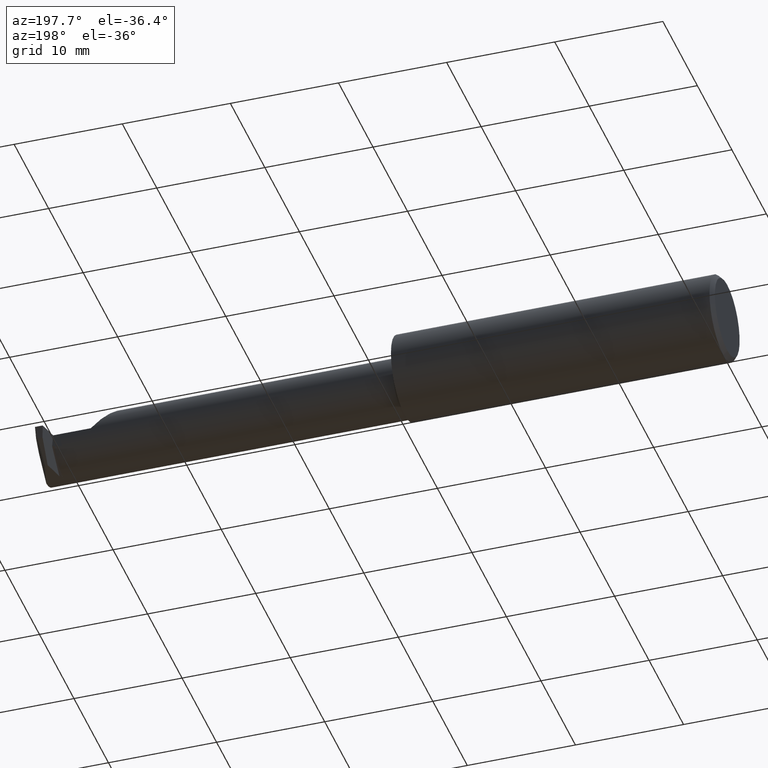
[diagram: clean part render]
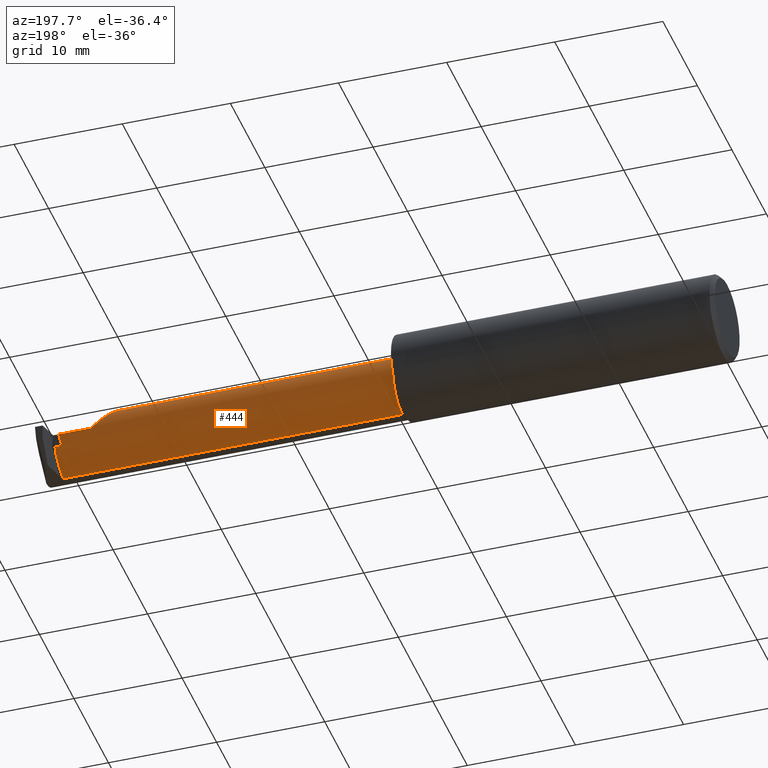
[diagram: same view with one face highlighted and labeled with its STEP entity id]
A machine part, auxiliary view. The second image highlights one B-rep face of the part: STEP entity #444.
In plain terms, the highlighted cylindrical surface (edge-blend (fillet) strip) has radius 2.794 mm, axis along (-1, -0, -0).
Its self-contained STEP definition (entity closure, byte-faithful):
#2 = EDGE_CURVE ( 'NONE', #621, #810, #738, .T. ) ;
#4 = LINE ( 'NONE', #78, #486 ) ;
#10 = AXIS2_PLACEMENT_3D ( 'NONE', #38, #619, #751 ) ;
#38 = CARTESIAN_POINT ( 'NONE',  ( 2.435000000000000053, -0.05409999999999999531, 0.000000000000000000 ) ) ;
#45 = CARTESIAN_POINT ( 'NONE',  ( 2.433435339008330534, -0.05409999999999999531, 0.000000000000000000 ) ) ;
#70 = AXIS2_PLACEMENT_3D ( 'NONE', #904, #279, #408 ) ;
#72 = DIRECTION ( 'NONE',  ( 1.000000000000000000, 0.000000000000000000, 0.000000000000000000 ) ) ;
#78 = CARTESIAN_POINT ( 'NONE',  ( 1.175000000000000266, 0.05590000000000001218, -3.918740332231607202E-17 ) ) ;
#93 = ORIENTED_EDGE ( 'NONE', *, *, #2, .T. ) ;
#99 = EDGE_CURVE ( 'NONE', #621, #911, #298, .T. ) ;
#100 = VERTEX_POINT ( 'NONE', #638 ) ;
#108 = ORIENTED_EDGE ( 'NONE', *, *, #672, .T. ) ;
#114 = DIRECTION ( 'NONE',  ( 0.000000000000000000, -1.785014314041990160E-15, -1.000000000000000000 ) ) ;
#122 = ORIENTED_EDGE ( 'NONE', *, *, #343, .T. ) ;
#130 = ORIENTED_EDGE ( 'NONE', *, *, #190, .F. ) ;
#171 = EDGE_CURVE ( 'NONE', #307, #100, #4, .T. ) ;
#177 = ORIENTED_EDGE ( 'NONE', *, *, #512, .F. ) ;
#190 = EDGE_CURVE ( 'NONE', #763, #616, #840, .T. ) ;
#195 = DIRECTION ( 'NONE',  ( -1.000000000000000000, -0.000000000000000000, -0.000000000000000000 ) ) ;
#209 = VECTOR ( 'NONE', #700, 39.37007874015748143 ) ;
#229 = CARTESIAN_POINT ( 'NONE',  ( 1.175000000000000266, -0.05409999999999999531, 0.1100000000000000006 ) ) ;
#231 = VERTEX_POINT ( 'NONE', #327 ) ;
#244 = CARTESIAN_POINT ( 'NONE',  ( 2.433435339008330534, 0.04660744544460401068, -0.04424941165735549187 ) ) ;
#248 = CARTESIAN_POINT ( 'NONE',  ( 1.175000000000000266, -0.03363394074619011076, -0.1080793246584172002 ) ) ;
#251 = VERTEX_POINT ( 'NONE', #604 ) ;
#279 = DIRECTION ( 'NONE',  ( -1.000000000000000000, -0.000000000000000000, -0.000000000000000000 ) ) ;
#287 = AXIS2_PLACEMENT_3D ( 'NONE', #45, #685, #114 ) ;
#298 = LINE ( 'NONE', #434, #209 ) ;
#307 = VERTEX_POINT ( 'NONE', #739 ) ;
#309 = LINE ( 'NONE', #248, #438 ) ;
#326 = CARTESIAN_POINT ( 'NONE',  ( 1.200000000000000178, -0.05409999999999999531, 0.1100000000000000006 ) ) ;
#327 = CARTESIAN_POINT ( 'NONE',  ( 2.435000000000000053, -0.03363394074619008300, -0.1080793246584171863 ) ) ;
#336 = LINE ( 'NONE', #614, #548 ) ;
#339 = CARTESIAN_POINT ( 'NONE',  ( 2.300000000000000266, 0.05590000000000006075, -3.918740332231607202E-17 ) ) ;
#343 = EDGE_CURVE ( 'NONE', #231, #251, #428, .T. ) ;
#352 = FACE_OUTER_BOUND ( 'NONE', #754, .T. ) ;
#371 = ORIENTED_EDGE ( 'NONE', *, *, #484, .T. ) ;
#407 = CARTESIAN_POINT ( 'NONE',  ( 2.235563491861040308, 0.05590000000000019259, 0.06443650813895937524 ) ) ;
#408 = DIRECTION ( 'NONE',  ( 0.000000000000000000, 0.000000000000000000, 1.000000000000000000 ) ) ;
#419 = CARTESIAN_POINT ( 'NONE',  ( 2.189999999999999947, 0.01033650813895969217, 0.1100000000000000283 ) ) ;
#428 = CIRCLE ( 'NONE', #10, 0.1100000000000000006 ) ;
#430 = VERTEX_POINT ( 'NONE', #813 ) ;
#434 = CARTESIAN_POINT ( 'NONE',  ( 1.175000000000000266, 0.04660744544460301148, -0.04424941165735776089 ) ) ;
#436 =( BOUNDED_CURVE ( )  B_SPLINE_CURVE ( 3, ( #339, #407, #419, #477 ),
 .UNSPECIFIED., .F., .F. ) 
 B_SPLINE_CURVE_WITH_KNOTS ( ( 4, 4 ),
 ( 4.712388980384687009, 6.283185307179586232 ),
 .UNSPECIFIED. ) 
 CURVE ( )  GEOMETRIC_REPRESENTATION_ITEM ( )  RATIONAL_B_SPLINE_CURVE ( ( 1.000000000000000000, 0.8047378541243643824, 0.8047378541243643824, 1.000000000000000000 ) ) 
 REPRESENTATION_ITEM ( '' )  );
#438 = VECTOR ( 'NONE', #531, 39.37007874015748143 ) ;
#444 = ADVANCED_FACE ( 'NONE', ( #352 ), #629, .T. ) ;
#466 = ORIENTED_EDGE ( 'NONE', *, *, #793, .T. ) ;
#477 = CARTESIAN_POINT ( 'NONE',  ( 2.189999999999999947, -0.05409999999999999531, 0.1100000000000000006 ) ) ;
#484 = EDGE_CURVE ( 'NONE', #430, #616, #554, .T. ) ;
#486 = VECTOR ( 'NONE', #504, 39.37007874015748143 ) ;
#490 = CARTESIAN_POINT ( 'NONE',  ( 2.433435339008330534, -0.03363394074619008300, -0.1080793246584171724 ) ) ;
#504 = DIRECTION ( 'NONE',  ( 1.000000000000000000, 0.000000000000000000, 0.000000000000000000 ) ) ;
#512 = EDGE_CURVE ( 'NONE', #911, #100, #762, .T. ) ;
#517 = CARTESIAN_POINT ( 'NONE',  ( 2.189999999999999947, -0.05409999999999999531, 0.1100000000000000006 ) ) ;
#531 = DIRECTION ( 'NONE',  ( 1.000000000000000000, 0.000000000000000000, 0.000000000000000000 ) ) ;
#548 = VECTOR ( 'NONE', #195, 39.37007874015748143 ) ;
#554 = CIRCLE ( 'NONE', #864, 0.1100000000000000006 ) ;
#578 = ORIENTED_EDGE ( 'NONE', *, *, #171, .T. ) ;
#580 = CARTESIAN_POINT ( 'NONE',  ( 2.407638684877114965, 0.04660744544460398986, -0.04424941165735551268 ) ) ;
#604 = CARTESIAN_POINT ( 'NONE',  ( 2.435000000000000053, -0.05410000000000000919, -0.1100000000000000006 ) ) ;
#614 = CARTESIAN_POINT ( 'NONE',  ( 1.175000000000000266, -0.05409999999999997450, -0.1100000000000000006 ) ) ;
#616 = VERTEX_POINT ( 'NONE', #326 ) ;
#619 = DIRECTION ( 'NONE',  ( -1.000000000000000000, -0.000000000000000000, -0.000000000000000000 ) ) ;
#621 = VERTEX_POINT ( 'NONE', #244 ) ;
#625 = ORIENTED_EDGE ( 'NONE', *, *, #800, .F. ) ;
#629 = CYLINDRICAL_SURFACE ( 'NONE', #70, 0.1100000000000000006 ) ;
#638 = CARTESIAN_POINT ( 'NONE',  ( 2.416931239432511092, 0.05590000000000005381, 0.000000000000000000 ) ) ;
#672 = EDGE_CURVE ( 'NONE', #810, #231, #309, .T. ) ;
#685 = DIRECTION ( 'NONE',  ( -1.000000000000000000, -0.000000000000000000, -0.000000000000000000 ) ) ;
#696 = CARTESIAN_POINT ( 'NONE',  ( 2.416931239432511092, 0.05590000000000005381, 0.000000000000000000 ) ) ;
#700 = DIRECTION ( 'NONE',  ( -1.000000000000000000, -0.000000000000000000, -0.000000000000000000 ) ) ;
#709 = DIRECTION ( 'NONE',  ( 0.000000000000000000, 0.000000000000000000, -1.000000000000000000 ) ) ;
#710 = DIRECTION ( 'NONE',  ( -1.000000000000000000, -0.000000000000000000, -0.000000000000000000 ) ) ;
#738 = CIRCLE ( 'NONE', #287, 0.1100000000000000006 ) ;
#739 = CARTESIAN_POINT ( 'NONE',  ( 2.300000000000000266, 0.05590000000000006075, -3.918740332231607202E-17 ) ) ;
#741 = CARTESIAN_POINT ( 'NONE',  ( 2.407638684877114965, 0.04660744544460398986, -0.04424941165735551268 ) ) ;
#751 = DIRECTION ( 'NONE',  ( 0.000000000000000000, 0.000000000000000000, 1.000000000000000000 ) ) ;
#754 = EDGE_LOOP ( 'NONE', ( #122, #466, #371, #130, #625, #578, #177, #853, #93, #108 ) ) ;
#762 =( BOUNDED_CURVE ( )  B_SPLINE_CURVE ( 3, ( #580, #918, #842, #696 ),
 .UNSPECIFIED., .F., .F. ) 
 B_SPLINE_CURVE_WITH_KNOTS ( ( 4, 4 ),
 ( 1.156804228221842479, 1.570796326794896780 ),
 .UNSPECIFIED. ) 
 CURVE ( )  GEOMETRIC_REPRESENTATION_ITEM ( )  RATIONAL_B_SPLINE_CURVE ( ( 1.000000000000000000, 0.9857684695413673204, 0.9857684695413673204, 1.000000000000000000 ) ) 
 REPRESENTATION_ITEM ( '' )  );
#763 = VERTEX_POINT ( 'NONE', #517 ) ;
#776 = CARTESIAN_POINT ( 'NONE',  ( 1.200000000000000178, -0.05409999999999999531, 0.000000000000000000 ) ) ;
#793 = EDGE_CURVE ( 'NONE', #251, #430, #336, .T. ) ;
#800 = EDGE_CURVE ( 'NONE', #307, #763, #436, .T. ) ;
#808 = VECTOR ( 'NONE', #710, 39.37007874015748143 ) ;
#810 = VERTEX_POINT ( 'NONE', #490 ) ;
#813 = CARTESIAN_POINT ( 'NONE',  ( 1.200000000000000178, -0.05409999999999997450, -0.1100000000000000006 ) ) ;
#840 = LINE ( 'NONE', #229, #808 ) ;
#842 = CARTESIAN_POINT ( 'NONE',  ( 2.413720460968152626, 0.05589999999999999830, -0.01528912821151733568 ) ) ;
#853 = ORIENTED_EDGE ( 'NONE', *, *, #99, .F. ) ;
#864 = AXIS2_PLACEMENT_3D ( 'NONE', #776, #72, #709 ) ;
#904 = CARTESIAN_POINT ( 'NONE',  ( 1.175000000000000266, -0.05409999999999999531, 0.000000000000000000 ) ) ;
#911 = VERTEX_POINT ( 'NONE', #741 ) ;
#918 = CARTESIAN_POINT ( 'NONE',  ( 2.410578223941060916, 0.05275776297290870470, -0.03025187488229246977 ) ) ;